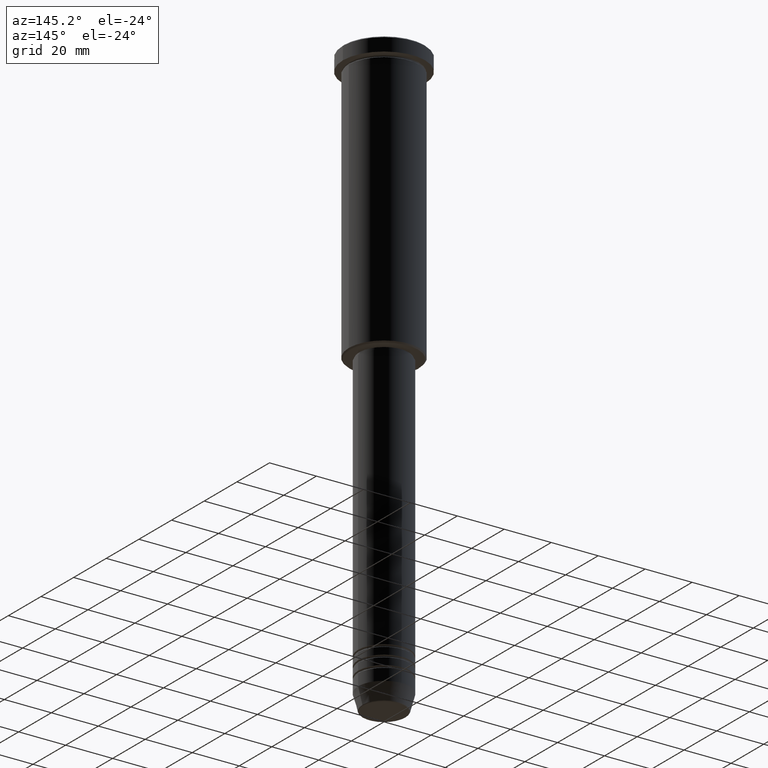
[diagram: clean part render]
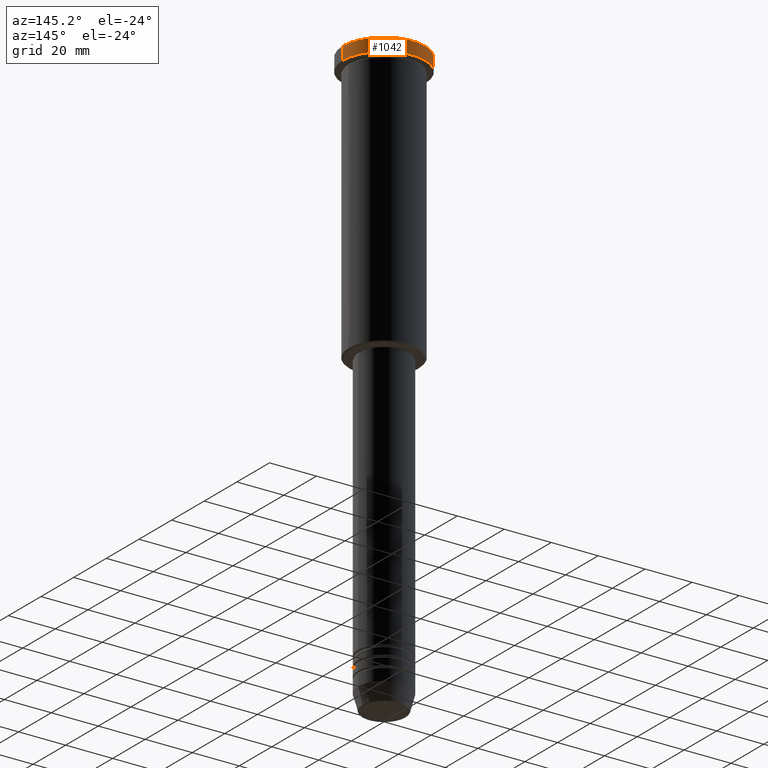
[diagram: same view with one face highlighted and labeled with its STEP entity id]
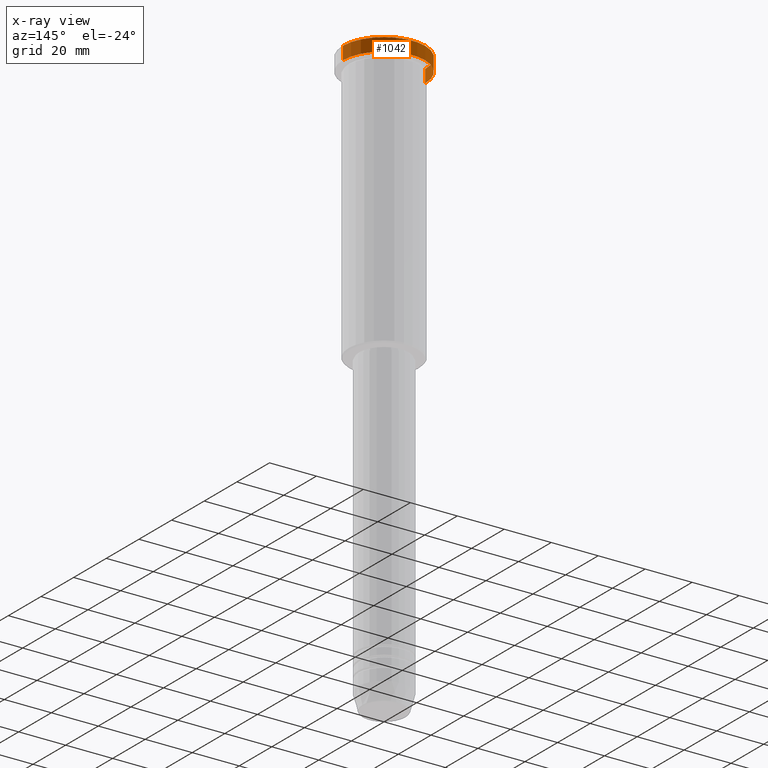
[diagram: x-ray of the same camera — body ghosted, the highlighted face saturated]
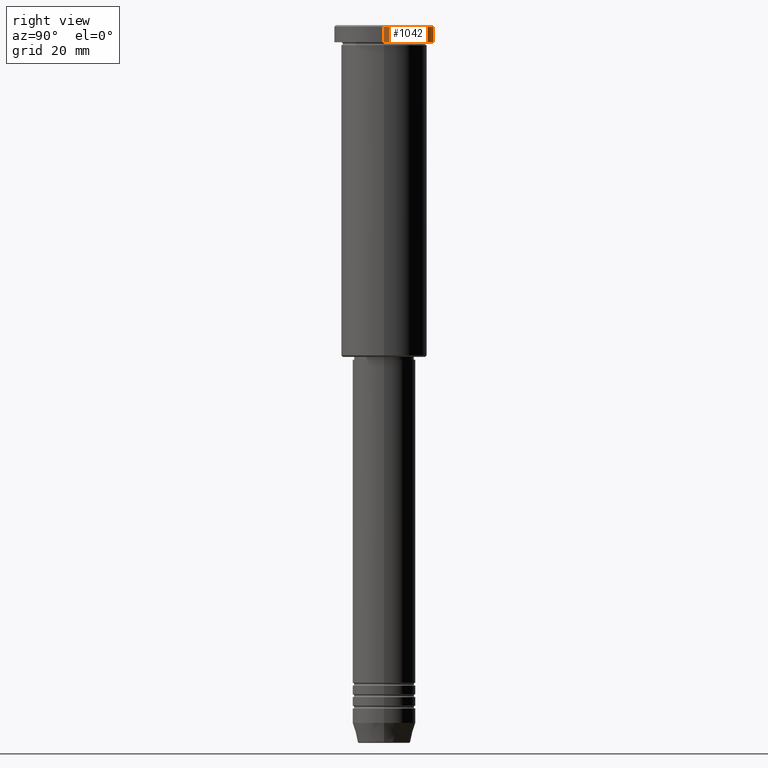
[diagram: same view with one face highlighted and labeled with its STEP entity id]
A machine part, auxiliary view. The second image highlights one B-rep face of the part: STEP entity #1042.
The next image is the same camera in x-ray: the body ghosted, the highlighted face saturated — about 0% of this face is hidden behind the body in this view.
A second angle (right view) of the same face is appended — the face is thin or edge-on in the first view.
In plain terms, the highlighted cylindrical surface (partial cylindrical patch) has radius 17.5 mm, axis along (-0, -0, 1).
Its self-contained STEP definition (entity closure, byte-faithful):
#6 = CIRCLE ( 'NONE', #665, 17.50000000000000000 ) ;
#78 = ORIENTED_EDGE ( 'NONE', *, *, #282, .T. ) ;
#107 = EDGE_CURVE ( 'NONE', #871, #237, #684, .T. ) ;
#113 = LINE ( 'NONE', #1132, #624 ) ;
#134 = CARTESIAN_POINT ( 'NONE',  ( -17.50000000000000000, 2.143131898507868248E-15, -0.5000000000000283107 ) ) ;
#190 = ORIENTED_EDGE ( 'NONE', *, *, #107, .T. ) ;
#226 = DIRECTION ( 'NONE',  ( 1.000000000000000000, 0.000000000000000000, 0.000000000000000000 ) ) ;
#234 = CARTESIAN_POINT ( 'NONE',  ( 0.000000000000000000, 0.000000000000000000, -0.5000000000000283107 ) ) ;
#237 = VERTEX_POINT ( 'NONE', #925 ) ;
#271 = AXIS2_PLACEMENT_3D ( 'NONE', #855, #480, #226 ) ;
#272 = ORIENTED_EDGE ( 'NONE', *, *, #949, .T. ) ;
#282 = EDGE_CURVE ( 'NONE', #904, #1013, #6, .T. ) ;
#394 = ORIENTED_EDGE ( 'NONE', *, *, #779, .F. ) ;
#409 = LINE ( 'NONE', #514, #1041 ) ;
#417 = DIRECTION ( 'NONE',  ( 1.000000000000000000, 0.000000000000000000, 0.000000000000000000 ) ) ;
#427 = FACE_OUTER_BOUND ( 'NONE', #595, .T. ) ;
#480 = DIRECTION ( 'NONE',  ( -0.000000000000000000, -0.000000000000000000, 1.000000000000000000 ) ) ;
#514 = CARTESIAN_POINT ( 'NONE',  ( -17.50000000000000000, 2.143131898507868248E-15, 0.000000000000000000 ) ) ;
#595 = EDGE_LOOP ( 'NONE', ( #190, #272, #78, #394 ) ) ;
#624 = VECTOR ( 'NONE', #677, 1000.000000000000000 ) ;
#665 = AXIS2_PLACEMENT_3D ( 'NONE', #234, #810, #417 ) ;
#677 = DIRECTION ( 'NONE',  ( -0.000000000000000000, -0.000000000000000000, 1.000000000000000000 ) ) ;
#683 = DIRECTION ( 'NONE',  ( 1.000000000000000000, 0.000000000000000000, 0.000000000000000000 ) ) ;
#684 = CIRCLE ( 'NONE', #271, 17.50000000000000000 ) ;
#779 = EDGE_CURVE ( 'NONE', #871, #1013, #113, .T. ) ;
#810 = DIRECTION ( 'NONE',  ( 0.000000000000000000, 0.000000000000000000, -1.000000000000000000 ) ) ;
#840 = AXIS2_PLACEMENT_3D ( 'NONE', #1163, #888, #683 ) ;
#855 = CARTESIAN_POINT ( 'NONE',  ( 0.000000000000000000, 0.000000000000000000, -5.999999999999995559 ) ) ;
#871 = VERTEX_POINT ( 'NONE', #1060 ) ;
#876 = CARTESIAN_POINT ( 'NONE',  ( 17.50000000000000000, 0.000000000000000000, -0.5000000000000283107 ) ) ;
#888 = DIRECTION ( 'NONE',  ( -0.000000000000000000, -0.000000000000000000, 1.000000000000000000 ) ) ;
#904 = VERTEX_POINT ( 'NONE', #134 ) ;
#925 = CARTESIAN_POINT ( 'NONE',  ( -17.50000000000000000, 2.143131898507868248E-15, -5.999999999999995559 ) ) ;
#949 = EDGE_CURVE ( 'NONE', #237, #904, #409, .T. ) ;
#992 = CYLINDRICAL_SURFACE ( 'NONE', #840, 17.50000000000000000 ) ;
#1013 = VERTEX_POINT ( 'NONE', #876 ) ;
#1041 = VECTOR ( 'NONE', #1066, 1000.000000000000000 ) ;
#1042 = ADVANCED_FACE ( 'NONE', ( #427 ), #992, .T. ) ;
#1060 = CARTESIAN_POINT ( 'NONE',  ( 17.50000000000000000, 0.000000000000000000, -5.999999999999995559 ) ) ;
#1066 = DIRECTION ( 'NONE',  ( -0.000000000000000000, -0.000000000000000000, 1.000000000000000000 ) ) ;
#1132 = CARTESIAN_POINT ( 'NONE',  ( 17.50000000000000000, 0.000000000000000000, 0.000000000000000000 ) ) ;
#1163 = CARTESIAN_POINT ( 'NONE',  ( 0.000000000000000000, 0.000000000000000000, 0.000000000000000000 ) ) ;